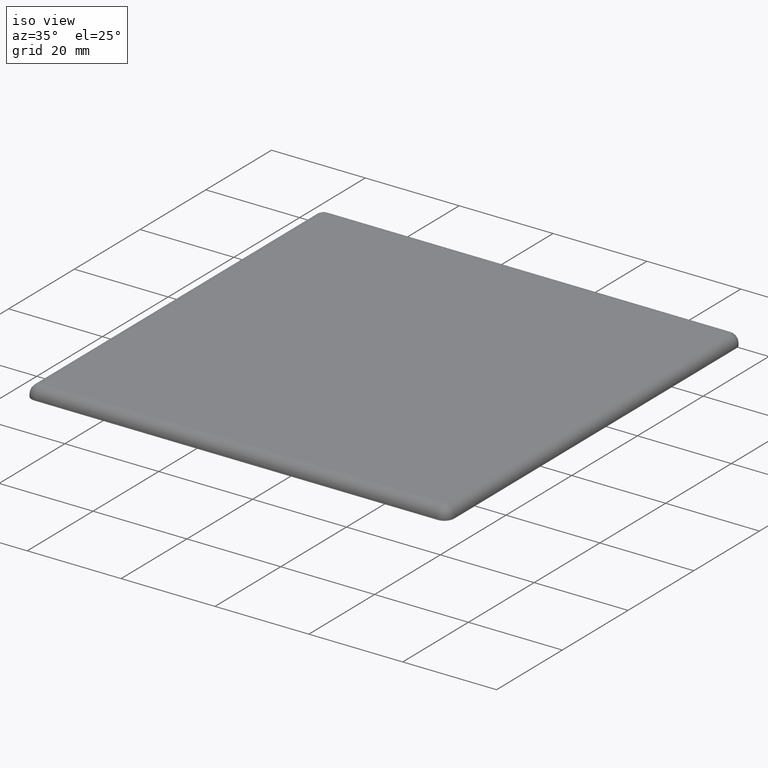
[diagram: clean part render]
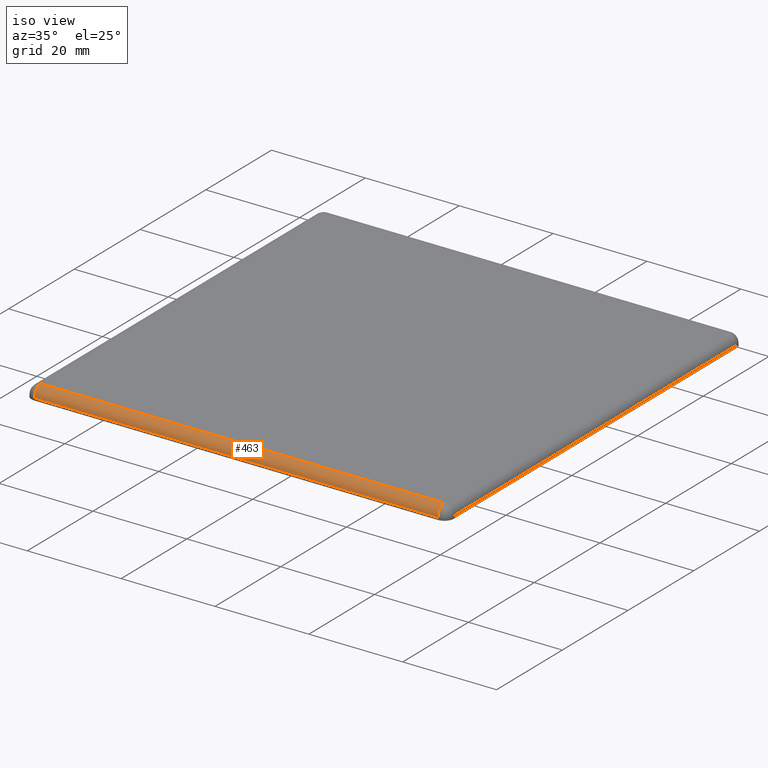
[diagram: same view with one face highlighted and labeled with its STEP entity id]
A machine part, iso view. The second image highlights one B-rep face of the part: STEP entity #463.
In plain terms, the highlighted cylindrical surface (edge-blend (fillet) strip) has radius 2 mm, axis along (1, 0, 0).
Its self-contained STEP definition (entity closure, byte-faithful):
#20=CYLINDRICAL_SURFACE('',#549,2.);
#75=FACE_OUTER_BOUND('',#117,.T.);
#117=EDGE_LOOP('',(#400,#401,#402,#403));
#140=LINE('',#800,#168);
#150=LINE('',#840,#178);
#168=VECTOR('',#648,10.);
#178=VECTOR('',#702,10.);
#207=CIRCLE('',#539,2.00000000000001);
#212=CIRCLE('',#547,2.);
#238=VERTEX_POINT('',#794);
#240=VERTEX_POINT('',#798);
#245=VERTEX_POINT('',#820);
#248=VERTEX_POINT('',#833);
#284=EDGE_CURVE('',#238,#240,#140,.T.);
#295=EDGE_CURVE('',#245,#238,#207,.F.);
#303=EDGE_CURVE('',#240,#248,#212,.F.);
#306=EDGE_CURVE('',#248,#245,#150,.T.);
#400=ORIENTED_EDGE('',*,*,#295,.T.);
#401=ORIENTED_EDGE('',*,*,#284,.T.);
#402=ORIENTED_EDGE('',*,*,#303,.T.);
#403=ORIENTED_EDGE('',*,*,#306,.T.);
#463=ADVANCED_FACE('',(#75),#20,.T.);
#539=AXIS2_PLACEMENT_3D('',#821,#675,#676);
#547=AXIS2_PLACEMENT_3D('',#835,#694,#695);
#549=AXIS2_PLACEMENT_3D('',#839,#700,#701);
#648=DIRECTION('',(-1.,-1.97372982155583E-16,0.));
#675=DIRECTION('center_axis',(1.,0.,0.));
#676=DIRECTION('ref_axis',(0.,-1.,0.));
#694=DIRECTION('center_axis',(-1.,0.,0.));
#695=DIRECTION('ref_axis',(0.,0.,1.));
#700=DIRECTION('center_axis',(1.,1.97372982155583E-16,0.));
#701=DIRECTION('ref_axis',(0.,-0.707106781186549,0.707106781186546));
#702=DIRECTION('',(1.,1.97372982155583E-16,0.));
#794=CARTESIAN_POINT('',(43.,-43.,2.5));
#798=CARTESIAN_POINT('',(-43.,-43.,2.5));
#800=CARTESIAN_POINT('',(-22.5,-43.,2.5));
#820=CARTESIAN_POINT('',(43.,-45.,0.5));
#821=CARTESIAN_POINT('Origin',(43.,-43.,0.5));
#833=CARTESIAN_POINT('',(-43.,-45.,0.5));
#835=CARTESIAN_POINT('Origin',(-43.,-43.,0.5));
#839=CARTESIAN_POINT('Origin',(-22.5,-43.,0.5));
#840=CARTESIAN_POINT('',(-22.5,-45.,0.5));